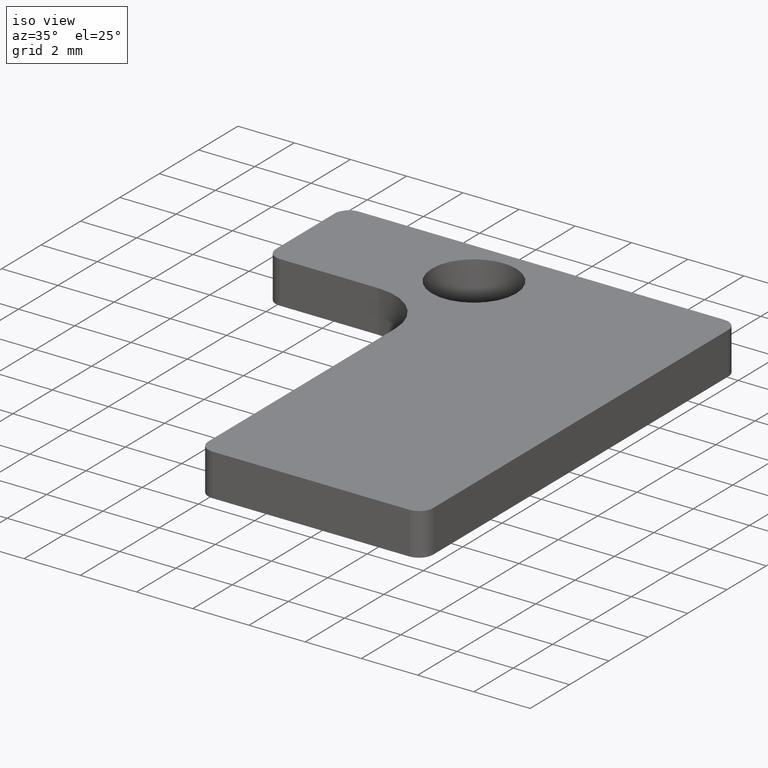
[diagram: clean part render]
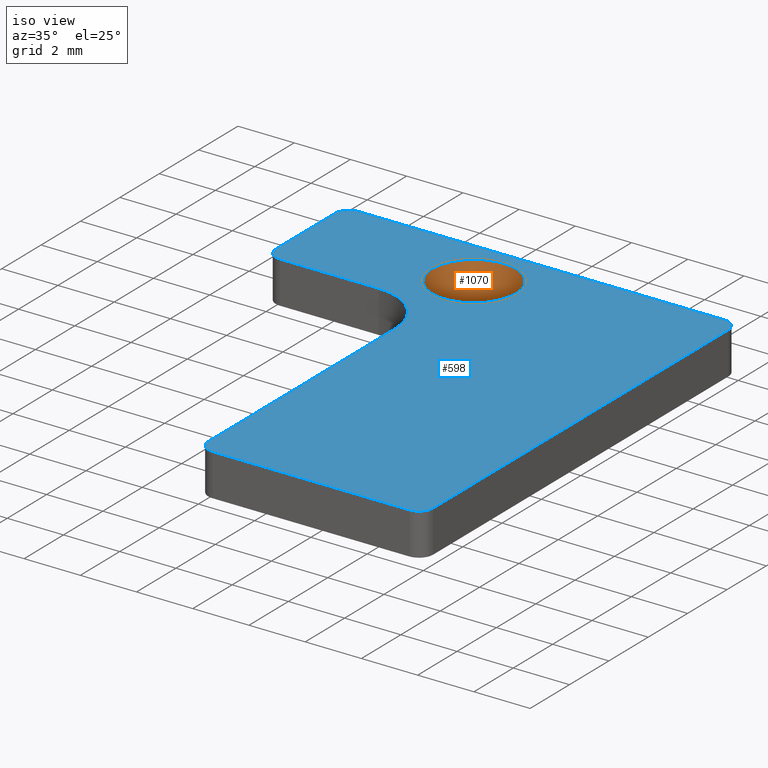
[diagram: same view with the hole feature highlighted: cylindrical wall and planar end face, labeled with their STEP entity ids]
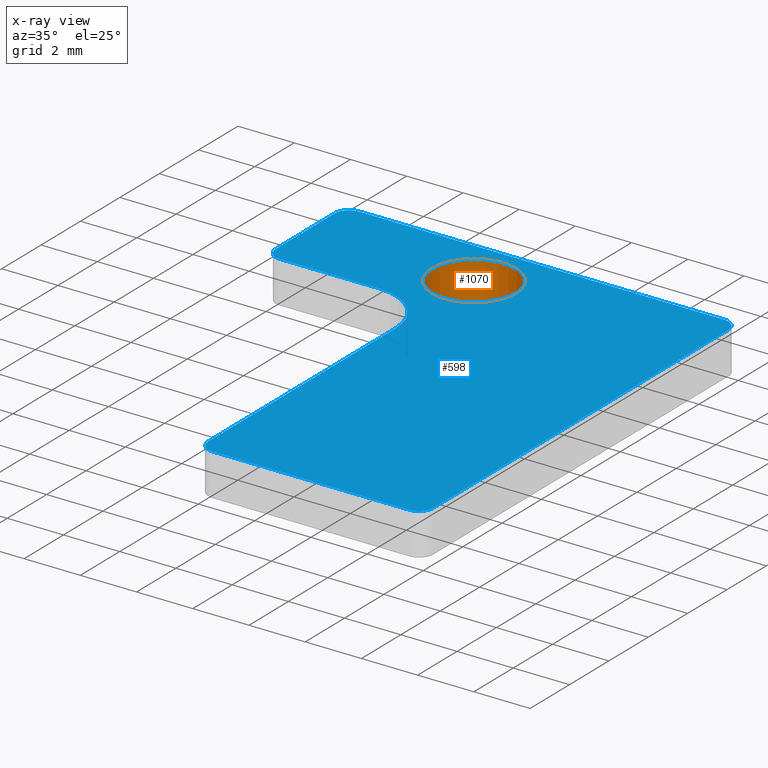
[diagram: x-ray of the same camera — body ghosted, the hole faces saturated]
A machine part, iso view. The highlighted faces form one hole feature of diameter 3 mm: the cylindrical wall (entity #1070, orange) and its adjacent planar end face (entity #598, blue) — they share a circular edge in the B-rep.
The next image is the same camera in x-ray (body ghosted, the hole faces saturated) — the bore reads through the body.
Wall:
#44 = PLANE('',#45);
#45 = AXIS2_PLACEMENT_3D('',#46,#47,#48);
#46 = CARTESIAN_POINT('',(2.2,9.2,0.));
#47 = DIRECTION('',(0.,0.,1.));
#48 = DIRECTION('',(1.,0.,0.));
#100 = PLANE('',#101);
#101 = AXIS2_PLACEMENT_3D('',#102,#103,#104);
#102 = CARTESIAN_POINT('',(2.2,9.2,1.5));
#103 = DIRECTION('',(0.,0.,1.));
#104 = DIRECTION('',(1.,0.,0.));
#462 = EDGE_CURVE('',#463,#463,#465,.T.);
#463 = VERTEX_POINT('',#464);
#464 = CARTESIAN_POINT('',(1.5,14.,0.));
#465 = SURFACE_CURVE('',#466,(#471,#478),.PCURVE_S1.);
#466 = CIRCLE('',#467,1.5);
#467 = AXIS2_PLACEMENT_3D('',#468,#469,#470);
#468 = CARTESIAN_POINT('',(0.,14.,0.));
#469 = DIRECTION('',(0.,0.,1.));
#470 = DIRECTION('',(1.,0.,0.));
#471 = PCURVE('',#44,#472);
#472 = DEFINITIONAL_REPRESENTATION('',(#473),#477);
#473 = CIRCLE('',#474,1.5);
#474 = AXIS2_PLACEMENT_2D('',#475,#476);
#475 = CARTESIAN_POINT('',(-2.2,4.8));
#476 = DIRECTION('',(1.,0.));
#477 = ( GEOMETRIC_REPRESENTATION_CONTEXT(2) 
PARAMETRIC_REPRESENTATION_CONTEXT() REPRESENTATION_CONTEXT('2D SPACE',''
  ) );
#478 = PCURVE('',#479,#484);
#479 = CYLINDRICAL_SURFACE('',#480,1.5);
#480 = AXIS2_PLACEMENT_3D('',#481,#482,#483);
#481 = CARTESIAN_POINT('',(0.,14.,0.));
#482 = DIRECTION('',(-0.,-0.,-1.));
#483 = DIRECTION('',(1.,0.,0.));
#484 = DEFINITIONAL_REPRESENTATION('',(#485),#489);
#485 = LINE('',#486,#487);
#486 = CARTESIAN_POINT('',(-0.,0.));
#487 = VECTOR('',#488,1.);
#488 = DIRECTION('',(-1.,0.));
#489 = ( GEOMETRIC_REPRESENTATION_CONTEXT(2) 
PARAMETRIC_REPRESENTATION_CONTEXT() REPRESENTATION_CONTEXT('2D SPACE',''
  ) );
#824 = EDGE_CURVE('',#825,#825,#827,.T.);
#825 = VERTEX_POINT('',#826);
#826 = CARTESIAN_POINT('',(1.5,14.,1.5));
#827 = SURFACE_CURVE('',#828,(#833,#840),.PCURVE_S1.);
#828 = CIRCLE('',#829,1.5);
#829 = AXIS2_PLACEMENT_3D('',#830,#831,#832);
#830 = CARTESIAN_POINT('',(0.,14.,1.5));
#831 = DIRECTION('',(0.,0.,1.));
#832 = DIRECTION('',(1.,0.,0.));
#833 = PCURVE('',#100,#834);
#834 = DEFINITIONAL_REPRESENTATION('',(#835),#839);
#835 = CIRCLE('',#836,1.5);
#836 = AXIS2_PLACEMENT_2D('',#837,#838);
#837 = CARTESIAN_POINT('',(-2.2,4.8));
#838 = DIRECTION('',(1.,0.));
#839 = ( GEOMETRIC_REPRESENTATION_CONTEXT(2) 
PARAMETRIC_REPRESENTATION_CONTEXT() REPRESENTATION_CONTEXT('2D SPACE',''
  ) );
#840 = PCURVE('',#479,#841);
#841 = DEFINITIONAL_REPRESENTATION('',(#842),#846);
#842 = LINE('',#843,#844);
#843 = CARTESIAN_POINT('',(-0.,-1.5));
#844 = VECTOR('',#845,1.);
#845 = DIRECTION('',(-1.,0.));
#846 = ( GEOMETRIC_REPRESENTATION_CONTEXT(2) 
PARAMETRIC_REPRESENTATION_CONTEXT() REPRESENTATION_CONTEXT('2D SPACE',''
  ) );
#1070 = ADVANCED_FACE('',(#1071),#479,.F.);
#1071 = FACE_BOUND('',#1072,.T.);
#1072 = EDGE_LOOP('',(#1073,#1094,#1095,#1096));
#1073 = ORIENTED_EDGE('',*,*,#1074,.T.);
#1074 = EDGE_CURVE('',#463,#825,#1075,.T.);
#1075 = SEAM_CURVE('',#1076,(#1080,#1087),.PCURVE_S1.);
#1076 = LINE('',#1077,#1078);
#1077 = CARTESIAN_POINT('',(1.5,14.,0.));
#1078 = VECTOR('',#1079,1.);
#1079 = DIRECTION('',(0.,0.,1.));
#1080 = PCURVE('',#479,#1081);
#1081 = DEFINITIONAL_REPRESENTATION('',(#1082),#1086);
#1082 = LINE('',#1083,#1084);
#1083 = CARTESIAN_POINT('',(-0.,0.));
#1084 = VECTOR('',#1085,1.);
#1085 = DIRECTION('',(-0.,-1.));
#1086 = ( GEOMETRIC_REPRESENTATION_CONTEXT(2) 
PARAMETRIC_REPRESENTATION_CONTEXT() REPRESENTATION_CONTEXT('2D SPACE',''
  ) );
#1087 = PCURVE('',#479,#1088);
#1088 = DEFINITIONAL_REPRESENTATION('',(#1089),#1093);
#1089 = LINE('',#1090,#1091);
#1090 = CARTESIAN_POINT('',(-6.28318530718,0.));
#1091 = VECTOR('',#1092,1.);
#1092 = DIRECTION('',(-0.,-1.));
#1093 = ( GEOMETRIC_REPRESENTATION_CONTEXT(2) 
PARAMETRIC_REPRESENTATION_CONTEXT() REPRESENTATION_CONTEXT('2D SPACE',''
  ) );
#1094 = ORIENTED_EDGE('',*,*,#824,.T.);
#1095 = ORIENTED_EDGE('',*,*,#1074,.F.);
#1096 = ORIENTED_EDGE('',*,*,#462,.F.);
End face:
#32 = PLANE('',#33);
#33 = AXIS2_PLACEMENT_3D('',#34,#35,#36);
#34 = CARTESIAN_POINT('',(0.,12.,0.));
#35 = DIRECTION('',(0.,-1.,0.));
#36 = DIRECTION('',(-1.,0.,0.));
#57 = VERTEX_POINT('',#58);
#58 = CARTESIAN_POINT('',(-2.,12.,1.5));
#72 = CYLINDRICAL_SURFACE('',#73,2.);
#73 = AXIS2_PLACEMENT_3D('',#74,#75,#76);
#74 = CARTESIAN_POINT('',(-2.,10.,0.));
#75 = DIRECTION('',(0.,0.,1.));
#76 = DIRECTION('',(0.,1.,0.));
#84 = EDGE_CURVE('',#57,#85,#87,.T.);
#85 = VERTEX_POINT('',#86);
#86 = CARTESIAN_POINT('',(-5.5,12.,1.5));
#87 = SURFACE_CURVE('',#88,(#92,#99),.PCURVE_S1.);
#88 = LINE('',#89,#90);
#89 = CARTESIAN_POINT('',(0.,12.,1.5));
#90 = VECTOR('',#91,1.);
#91 = DIRECTION('',(-1.,0.,0.));
#92 = PCURVE('',#32,#93);
#93 = DEFINITIONAL_REPRESENTATION('',(#94),#98);
#94 = LINE('',#95,#96);
#95 = CARTESIAN_POINT('',(0.,-1.5));
#96 = VECTOR('',#97,1.);
#97 = DIRECTION('',(1.,0.));
#98 = ( GEOMETRIC_REPRESENTATION_CONTEXT(2) 
PARAMETRIC_REPRESENTATION_CONTEXT() REPRESENTATION_CONTEXT('2D SPACE',''
  ) );
#99 = PCURVE('',#100,#105);
#100 = PLANE('',#101);
#101 = AXIS2_PLACEMENT_3D('',#102,#103,#104);
#102 = CARTESIAN_POINT('',(2.2,9.2,1.5));
#103 = DIRECTION('',(0.,0.,1.));
#104 = DIRECTION('',(1.,0.,0.));
#105 = DEFINITIONAL_REPRESENTATION('',(#106),#110);
#106 = LINE('',#107,#108);
#107 = CARTESIAN_POINT('',(-2.2,2.8));
#108 = VECTOR('',#109,1.);
#109 = DIRECTION('',(-1.,0.));
#110 = ( GEOMETRIC_REPRESENTATION_CONTEXT(2) 
PARAMETRIC_REPRESENTATION_CONTEXT() REPRESENTATION_CONTEXT('2D SPACE',''
  ) );
#126 = CYLINDRICAL_SURFACE('',#127,0.5);
#127 = AXIS2_PLACEMENT_3D('',#128,#129,#130);
#128 = CARTESIAN_POINT('',(-5.5,12.5,0.));
#129 = DIRECTION('',(0.,0.,1.));
#130 = DIRECTION('',(0.,-1.,0.));
#186 = PLANE('',#187);
#187 = AXIS2_PLACEMENT_3D('',#188,#189,#190);
#188 = CARTESIAN_POINT('',(0.,0.,0.));
#189 = DIRECTION('',(-1.,0.,0.));
#190 = DIRECTION('',(0.,1.,0.));
#215 = CYLINDRICAL_SURFACE('',#216,0.5);
#216 = AXIS2_PLACEMENT_3D('',#217,#218,#219);
#217 = CARTESIAN_POINT('',(0.5,0.5,0.));
#218 = DIRECTION('',(0.,0.,1.));
#219 = DIRECTION('',(-1.,0.,0.));
#243 = PLANE('',#244);
#244 = AXIS2_PLACEMENT_3D('',#245,#246,#247);
#245 = CARTESIAN_POINT('',(0.,0.,0.));
#246 = DIRECTION('',(0.,1.,0.));
#247 = DIRECTION('',(1.,0.,0.));
#272 = CYLINDRICAL_SURFACE('',#273,0.5);
#273 = AXIS2_PLACEMENT_3D('',#274,#275,#276);
#274 = CARTESIAN_POINT('',(7.5,0.5,0.));
#275 = DIRECTION('',(0.,0.,1.));
#276 = DIRECTION('',(0.,-1.,0.));
#300 = PLANE('',#301);
#301 = AXIS2_PLACEMENT_3D('',#302,#303,#304);
#302 = CARTESIAN_POINT('',(8.,0.,0.));
#303 = DIRECTION('',(-1.,0.,0.));
#304 = DIRECTION('',(0.,1.,0.));
#333 = CYLINDRICAL_SURFACE('',#334,0.5);
#334 = AXIS2_PLACEMENT_3D('',#335,#336,#337);
#335 = CARTESIAN_POINT('',(7.5,15.5,0.));
#336 = DIRECTION('',(0.,0.,1.));
#337 = DIRECTION('',(-0.,1.,0.));
#361 = PLANE('',#362);
#362 = AXIS2_PLACEMENT_3D('',#363,#364,#365);
#363 = CARTESIAN_POINT('',(8.,16.,0.));
#364 = DIRECTION('',(0.,-1.,0.));
#365 = DIRECTION('',(-1.,0.,0.));
#394 = CYLINDRICAL_SURFACE('',#395,0.5);
#395 = AXIS2_PLACEMENT_3D('',#396,#397,#398);
#396 = CARTESIAN_POINT('',(-5.5,15.5,0.));
#397 = DIRECTION('',(0.,0.,1.));
#398 = DIRECTION('',(-1.,0.,0.));
#422 = PLANE('',#423);
#423 = AXIS2_PLACEMENT_3D('',#424,#425,#426);
#424 = CARTESIAN_POINT('',(-6.,16.,0.));
#425 = DIRECTION('',(1.,0.,0.));
#426 = DIRECTION('',(0.,-1.,0.));
#479 = CYLINDRICAL_SURFACE('',#480,1.5);
#480 = AXIS2_PLACEMENT_3D('',#481,#482,#483);
#481 = CARTESIAN_POINT('',(0.,14.,0.));
#482 = DIRECTION('',(-0.,-0.,-1.));
#483 = DIRECTION('',(1.,0.,0.));
#496 = VERTEX_POINT('',#497);
#497 = CARTESIAN_POINT('',(-6.,12.5,1.5));
#518 = EDGE_CURVE('',#85,#496,#519,.T.);
#519 = SURFACE_CURVE('',#520,(#525,#532),.PCURVE_S1.);
#520 = CIRCLE('',#521,0.5);
#521 = AXIS2_PLACEMENT_3D('',#522,#523,#524);
#522 = CARTESIAN_POINT('',(-5.5,12.5,1.5));
#523 = DIRECTION('',(-0.,-0.,-1.));
#524 = DIRECTION('',(0.,-1.,0.));
#525 = PCURVE('',#126,#526);
#526 = DEFINITIONAL_REPRESENTATION('',(#527),#531);
#527 = LINE('',#528,#529);
#528 = CARTESIAN_POINT('',(-0.,1.5));
#529 = VECTOR('',#530,1.);
#530 = DIRECTION('',(-1.,0.));
#531 = ( GEOMETRIC_REPRESENTATION_CONTEXT(2) 
PARAMETRIC_REPRESENTATION_CONTEXT() REPRESENTATION_CONTEXT('2D SPACE',''
  ) );
#532 = PCURVE('',#100,#533);
#533 = DEFINITIONAL_REPRESENTATION('',(#534),#542);
#534 = ( BOUNDED_CURVE() B_SPLINE_CURVE(2,(#535,#536,#537,#538,#539,#540
,#541),.UNSPECIFIED.,.T.,.F.) B_SPLINE_CURVE_WITH_KNOTS((1,2,2,2,2,1),(
    -2.094395102393,0.,2.094395102393,4.188790204786,6.28318530718,
8.377580409573),.UNSPECIFIED.) CURVE() GEOMETRIC_REPRESENTATION_ITEM() 
RATIONAL_B_SPLINE_CURVE((1.,0.5,1.,0.5,1.,0.5,1.)) REPRESENTATION_ITEM(
  '') );
#535 = CARTESIAN_POINT('',(-7.7,2.8));
#536 = CARTESIAN_POINT('',(-8.566025403784,2.8));
#537 = CARTESIAN_POINT('',(-8.133012701892,3.55));
#538 = CARTESIAN_POINT('',(-7.7,4.3));
#539 = CARTESIAN_POINT('',(-7.266987298108,3.55));
#540 = CARTESIAN_POINT('',(-6.833974596216,2.8));
#541 = CARTESIAN_POINT('',(-7.7,2.8));
#542 = ( GEOMETRIC_REPRESENTATION_CONTEXT(2) 
PARAMETRIC_REPRESENTATION_CONTEXT() REPRESENTATION_CONTEXT('2D SPACE',''
  ) );
#550 = VERTEX_POINT('',#551);
#551 = CARTESIAN_POINT('',(4.440892098501E-16,10.,1.5));
#572 = EDGE_CURVE('',#57,#550,#573,.T.);
#573 = SURFACE_CURVE('',#574,(#579,#586),.PCURVE_S1.);
#574 = CIRCLE('',#575,2.);
#575 = AXIS2_PLACEMENT_3D('',#576,#577,#578);
#576 = CARTESIAN_POINT('',(-2.,10.,1.5));
#577 = DIRECTION('',(-0.,-0.,-1.));
#578 = DIRECTION('',(0.,-1.,0.));
#579 = PCURVE('',#72,#580);
#580 = DEFINITIONAL_REPRESENTATION('',(#581),#585);
#581 = LINE('',#582,#583);
#582 = CARTESIAN_POINT('',(3.14159265359,1.5));
#583 = VECTOR('',#584,1.);
#584 = DIRECTION('',(-1.,0.));
#585 = ( GEOMETRIC_REPRESENTATION_CONTEXT(2) 
PARAMETRIC_REPRESENTATION_CONTEXT() REPRESENTATION_CONTEXT('2D SPACE',''
  ) );
#586 = PCURVE('',#100,#587);
#587 = DEFINITIONAL_REPRESENTATION('',(#588),#596);
#588 = ( BOUNDED_CURVE() B_SPLINE_CURVE(2,(#589,#590,#591,#592,#593,#594
,#595),.UNSPECIFIED.,.F.,.F.) B_SPLINE_CURVE_WITH_KNOTS((1,2,2,2,2,1),(
    -2.094395102393,0.,2.094395102393,4.188790204786,6.28318530718,
8.377580409573),.UNSPECIFIED.) CURVE() GEOMETRIC_REPRESENTATION_ITEM() 
RATIONAL_B_SPLINE_CURVE((1.,0.5,1.,0.5,1.,0.5,1.)) REPRESENTATION_ITEM(
  '') );
#589 = CARTESIAN_POINT('',(-4.2,-1.2));
#590 = CARTESIAN_POINT('',(-7.664101615138,-1.2));
#591 = CARTESIAN_POINT('',(-5.932050807569,1.8));
#592 = CARTESIAN_POINT('',(-4.2,4.8));
#593 = CARTESIAN_POINT('',(-2.467949192431,1.8));
#594 = CARTESIAN_POINT('',(-0.735898384862,-1.2));
#595 = CARTESIAN_POINT('',(-4.2,-1.2));
#596 = ( GEOMETRIC_REPRESENTATION_CONTEXT(2) 
PARAMETRIC_REPRESENTATION_CONTEXT() REPRESENTATION_CONTEXT('2D SPACE',''
  ) );
#598 = ADVANCED_FACE('',(#599,#821),#100,.T.);
#599 = FACE_BOUND('',#600,.T.);
#600 = EDGE_LOOP('',(#601,#602,#603,#626,#650,#673,#697,#720,#748,#771,
    #799,#820));
#601 = ORIENTED_EDGE('',*,*,#84,.F.);
#602 = ORIENTED_EDGE('',*,*,#572,.T.);
#603 = ORIENTED_EDGE('',*,*,#604,.F.);
#604 = EDGE_CURVE('',#605,#550,#607,.T.);
#605 = VERTEX_POINT('',#606);
#606 = CARTESIAN_POINT('',(-1.110223024625E-16,0.5,1.5));
#607 = SURFACE_CURVE('',#608,(#612,#619),.PCURVE_S1.);
#608 = LINE('',#609,#610);
#609 = CARTESIAN_POINT('',(0.,0.,1.5));
#610 = VECTOR('',#611,1.);
#611 = DIRECTION('',(0.,1.,0.));
#612 = PCURVE('',#100,#613);
#613 = DEFINITIONAL_REPRESENTATION('',(#614),#618);
#614 = LINE('',#615,#616);
#615 = CARTESIAN_POINT('',(-2.2,-9.2));
#616 = VECTOR('',#617,1.);
#617 = DIRECTION('',(0.,1.));
#618 = ( GEOMETRIC_REPRESENTATION_CONTEXT(2) 
PARAMETRIC_REPRESENTATION_CONTEXT() REPRESENTATION_CONTEXT('2D SPACE',''
  ) );
#619 = PCURVE('',#186,#620);
#620 = DEFINITIONAL_REPRESENTATION('',(#621),#625);
#621 = LINE('',#622,#623);
#622 = CARTESIAN_POINT('',(0.,-1.5));
#623 = VECTOR('',#624,1.);
#624 = DIRECTION('',(1.,0.));
#625 = ( GEOMETRIC_REPRESENTATION_CONTEXT(2) 
PARAMETRIC_REPRESENTATION_CONTEXT() REPRESENTATION_CONTEXT('2D SPACE',''
  ) );
#626 = ORIENTED_EDGE('',*,*,#627,.T.);
#627 = EDGE_CURVE('',#605,#628,#630,.T.);
#628 = VERTEX_POINT('',#629);
#629 = CARTESIAN_POINT('',(0.5,-1.110223024625E-16,1.5));
#630 = SURFACE_CURVE('',#631,(#636,#643),.PCURVE_S1.);
#631 = CIRCLE('',#632,0.5);
#632 = AXIS2_PLACEMENT_3D('',#633,#634,#635);
#633 = CARTESIAN_POINT('',(0.5,0.5,1.5));
#634 = DIRECTION('',(0.,0.,1.));
#635 = DIRECTION('',(0.,-1.,0.));
#636 = PCURVE('',#100,#637);
#637 = DEFINITIONAL_REPRESENTATION('',(#638),#642);
#638 = CIRCLE('',#639,0.5);
#639 = AXIS2_PLACEMENT_2D('',#640,#641);
#640 = CARTESIAN_POINT('',(-1.7,-8.7));
#641 = DIRECTION('',(0.,-1.));
#642 = ( GEOMETRIC_REPRESENTATION_CONTEXT(2) 
PARAMETRIC_REPRESENTATION_CONTEXT() REPRESENTATION_CONTEXT('2D SPACE',''
  ) );
#643 = PCURVE('',#215,#644);
#644 = DEFINITIONAL_REPRESENTATION('',(#645),#649);
#645 = LINE('',#646,#647);
#646 = CARTESIAN_POINT('',(-4.712388980385,1.5));
#647 = VECTOR('',#648,1.);
#648 = DIRECTION('',(1.,0.));
#649 = ( GEOMETRIC_REPRESENTATION_CONTEXT(2) 
PARAMETRIC_REPRESENTATION_CONTEXT() REPRESENTATION_CONTEXT('2D SPACE',''
  ) );
#650 = ORIENTED_EDGE('',*,*,#651,.T.);
#651 = EDGE_CURVE('',#628,#652,#654,.T.);
#652 = VERTEX_POINT('',#653);
#653 = CARTESIAN_POINT('',(7.5,-1.110223024625E-16,1.5));
#654 = SURFACE_CURVE('',#655,(#659,#666),.PCURVE_S1.);
#655 = LINE('',#656,#657);
#656 = CARTESIAN_POINT('',(0.,0.,1.5));
#657 = VECTOR('',#658,1.);
#658 = DIRECTION('',(1.,0.,0.));
#659 = PCURVE('',#100,#660);
#660 = DEFINITIONAL_REPRESENTATION('',(#661),#665);
#661 = LINE('',#662,#663);
#662 = CARTESIAN_POINT('',(-2.2,-9.2));
#663 = VECTOR('',#664,1.);
#664 = DIRECTION('',(1.,0.));
#665 = ( GEOMETRIC_REPRESENTATION_CONTEXT(2) 
PARAMETRIC_REPRESENTATION_CONTEXT() REPRESENTATION_CONTEXT('2D SPACE',''
  ) );
#666 = PCURVE('',#243,#667);
#667 = DEFINITIONAL_REPRESENTATION('',(#668),#672);
#668 = LINE('',#669,#670);
#669 = CARTESIAN_POINT('',(0.,-1.5));
#670 = VECTOR('',#671,1.);
#671 = DIRECTION('',(1.,0.));
#672 = ( GEOMETRIC_REPRESENTATION_CONTEXT(2) 
PARAMETRIC_REPRESENTATION_CONTEXT() REPRESENTATION_CONTEXT('2D SPACE',''
  ) );
#673 = ORIENTED_EDGE('',*,*,#674,.T.);
#674 = EDGE_CURVE('',#652,#675,#677,.T.);
#675 = VERTEX_POINT('',#676);
#676 = CARTESIAN_POINT('',(8.,0.5,1.5));
#677 = SURFACE_CURVE('',#678,(#683,#690),.PCURVE_S1.);
#678 = CIRCLE('',#679,0.5);
#679 = AXIS2_PLACEMENT_3D('',#680,#681,#682);
#680 = CARTESIAN_POINT('',(7.5,0.5,1.5));
#681 = DIRECTION('',(0.,0.,1.));
#682 = DIRECTION('',(0.,-1.,0.));
#683 = PCURVE('',#100,#684);
#684 = DEFINITIONAL_REPRESENTATION('',(#685),#689);
#685 = CIRCLE('',#686,0.5);
#686 = AXIS2_PLACEMENT_2D('',#687,#688);
#687 = CARTESIAN_POINT('',(5.3,-8.7));
#688 = DIRECTION('',(0.,-1.));
#689 = ( GEOMETRIC_REPRESENTATION_CONTEXT(2) 
PARAMETRIC_REPRESENTATION_CONTEXT() REPRESENTATION_CONTEXT('2D SPACE',''
  ) );
#690 = PCURVE('',#272,#691);
#691 = DEFINITIONAL_REPRESENTATION('',(#692),#696);
#692 = LINE('',#693,#694);
#693 = CARTESIAN_POINT('',(0.,1.5));
#694 = VECTOR('',#695,1.);
#695 = DIRECTION('',(1.,0.));
#696 = ( GEOMETRIC_REPRESENTATION_CONTEXT(2) 
PARAMETRIC_REPRESENTATION_CONTEXT() REPRESENTATION_CONTEXT('2D SPACE',''
  ) );
#697 = ORIENTED_EDGE('',*,*,#698,.T.);
#698 = EDGE_CURVE('',#675,#699,#701,.T.);
#699 = VERTEX_POINT('',#700);
#700 = CARTESIAN_POINT('',(8.,15.5,1.5));
#701 = SURFACE_CURVE('',#702,(#706,#713),.PCURVE_S1.);
#702 = LINE('',#703,#704);
#703 = CARTESIAN_POINT('',(8.,0.,1.5));
#704 = VECTOR('',#705,1.);
#705 = DIRECTION('',(0.,1.,0.));
#706 = PCURVE('',#100,#707);
#707 = DEFINITIONAL_REPRESENTATION('',(#708),#712);
#708 = LINE('',#709,#710);
#709 = CARTESIAN_POINT('',(5.8,-9.2));
#710 = VECTOR('',#711,1.);
#711 = DIRECTION('',(0.,1.));
#712 = ( GEOMETRIC_REPRESENTATION_CONTEXT(2) 
PARAMETRIC_REPRESENTATION_CONTEXT() REPRESENTATION_CONTEXT('2D SPACE',''
  ) );
#713 = PCURVE('',#300,#714);
#714 = DEFINITIONAL_REPRESENTATION('',(#715),#719);
#715 = LINE('',#716,#717);
#716 = CARTESIAN_POINT('',(0.,-1.5));
#717 = VECTOR('',#718,1.);
#718 = DIRECTION('',(1.,0.));
#719 = ( GEOMETRIC_REPRESENTATION_CONTEXT(2) 
PARAMETRIC_REPRESENTATION_CONTEXT() REPRESENTATION_CONTEXT('2D SPACE',''
  ) );
#720 = ORIENTED_EDGE('',*,*,#721,.F.);
#721 = EDGE_CURVE('',#722,#699,#724,.T.);
#722 = VERTEX_POINT('',#723);
#723 = CARTESIAN_POINT('',(7.5,16.,1.5));
#724 = SURFACE_CURVE('',#725,(#730,#741),.PCURVE_S1.);
#725 = CIRCLE('',#726,0.5);
#726 = AXIS2_PLACEMENT_3D('',#727,#728,#729);
#727 = CARTESIAN_POINT('',(7.5,15.5,1.5));
#728 = DIRECTION('',(-0.,-0.,-1.));
#729 = DIRECTION('',(0.,-1.,0.));
#730 = PCURVE('',#100,#731);
#731 = DEFINITIONAL_REPRESENTATION('',(#732),#740);
#732 = ( BOUNDED_CURVE() B_SPLINE_CURVE(2,(#733,#734,#735,#736,#737,#738
,#739),.UNSPECIFIED.,.T.,.F.) B_SPLINE_CURVE_WITH_KNOTS((1,2,2,2,2,1),(
    -2.094395102393,0.,2.094395102393,4.188790204786,6.28318530718,
8.377580409573),.UNSPECIFIED.) CURVE() GEOMETRIC_REPRESENTATION_ITEM() 
RATIONAL_B_SPLINE_CURVE((1.,0.5,1.,0.5,1.,0.5,1.)) REPRESENTATION_ITEM(
  '') );
#733 = CARTESIAN_POINT('',(5.3,5.8));
#734 = CARTESIAN_POINT('',(4.433974596216,5.8));
#735 = CARTESIAN_POINT('',(4.866987298108,6.55));
#736 = CARTESIAN_POINT('',(5.3,7.3));
#737 = CARTESIAN_POINT('',(5.733012701892,6.55));
#738 = CARTESIAN_POINT('',(6.166025403784,5.8));
#739 = CARTESIAN_POINT('',(5.3,5.8));
#740 = ( GEOMETRIC_REPRESENTATION_CONTEXT(2) 
PARAMETRIC_REPRESENTATION_CONTEXT() REPRESENTATION_CONTEXT('2D SPACE',''
  ) );
#741 = PCURVE('',#333,#742);
#742 = DEFINITIONAL_REPRESENTATION('',(#743),#747);
#743 = LINE('',#744,#745);
#744 = CARTESIAN_POINT('',(3.14159265359,1.5));
#745 = VECTOR('',#746,1.);
#746 = DIRECTION('',(-1.,0.));
#747 = ( GEOMETRIC_REPRESENTATION_CONTEXT(2) 
PARAMETRIC_REPRESENTATION_CONTEXT() REPRESENTATION_CONTEXT('2D SPACE',''
  ) );
#748 = ORIENTED_EDGE('',*,*,#749,.T.);
#749 = EDGE_CURVE('',#722,#750,#752,.T.);
#750 = VERTEX_POINT('',#751);
#751 = CARTESIAN_POINT('',(-5.5,16.,1.5));
#752 = SURFACE_CURVE('',#753,(#757,#764),.PCURVE_S1.);
#753 = LINE('',#754,#755);
#754 = CARTESIAN_POINT('',(8.,16.,1.5));
#755 = VECTOR('',#756,1.);
#756 = DIRECTION('',(-1.,0.,0.));
#757 = PCURVE('',#100,#758);
#758 = DEFINITIONAL_REPRESENTATION('',(#759),#763);
#759 = LINE('',#760,#761);
#760 = CARTESIAN_POINT('',(5.8,6.8));
#761 = VECTOR('',#762,1.);
#762 = DIRECTION('',(-1.,0.));
#763 = ( GEOMETRIC_REPRESENTATION_CONTEXT(2) 
PARAMETRIC_REPRESENTATION_CONTEXT() REPRESENTATION_CONTEXT('2D SPACE',''
  ) );
#764 = PCURVE('',#361,#765);
#765 = DEFINITIONAL_REPRESENTATION('',(#766),#770);
#766 = LINE('',#767,#768);
#767 = CARTESIAN_POINT('',(0.,-1.5));
#768 = VECTOR('',#769,1.);
#769 = DIRECTION('',(1.,0.));
#770 = ( GEOMETRIC_REPRESENTATION_CONTEXT(2) 
PARAMETRIC_REPRESENTATION_CONTEXT() REPRESENTATION_CONTEXT('2D SPACE',''
  ) );
#771 = ORIENTED_EDGE('',*,*,#772,.F.);
#772 = EDGE_CURVE('',#773,#750,#775,.T.);
#773 = VERTEX_POINT('',#774);
#774 = CARTESIAN_POINT('',(-6.,15.5,1.5));
#775 = SURFACE_CURVE('',#776,(#781,#792),.PCURVE_S1.);
#776 = CIRCLE('',#777,0.5);
#777 = AXIS2_PLACEMENT_3D('',#778,#779,#780);
#778 = CARTESIAN_POINT('',(-5.5,15.5,1.5));
#779 = DIRECTION('',(-0.,-0.,-1.));
#780 = DIRECTION('',(0.,-1.,0.));
#781 = PCURVE('',#100,#782);
#782 = DEFINITIONAL_REPRESENTATION('',(#783),#791);
#783 = ( BOUNDED_CURVE() B_SPLINE_CURVE(2,(#784,#785,#786,#787,#788,#789
,#790),.UNSPECIFIED.,.T.,.F.) B_SPLINE_CURVE_WITH_KNOTS((1,2,2,2,2,1),(
    -2.094395102393,0.,2.094395102393,4.188790204786,6.28318530718,
8.377580409573),.UNSPECIFIED.) CURVE() GEOMETRIC_REPRESENTATION_ITEM() 
RATIONAL_B_SPLINE_CURVE((1.,0.5,1.,0.5,1.,0.5,1.)) REPRESENTATION_ITEM(
  '') );
#784 = CARTESIAN_POINT('',(-7.7,5.8));
#785 = CARTESIAN_POINT('',(-8.566025403784,5.8));
#786 = CARTESIAN_POINT('',(-8.133012701892,6.55));
#787 = CARTESIAN_POINT('',(-7.7,7.3));
#788 = CARTESIAN_POINT('',(-7.266987298108,6.55));
#789 = CARTESIAN_POINT('',(-6.833974596216,5.8));
#790 = CARTESIAN_POINT('',(-7.7,5.8));
#791 = ( GEOMETRIC_REPRESENTATION_CONTEXT(2) 
PARAMETRIC_REPRESENTATION_CONTEXT() REPRESENTATION_CONTEXT('2D SPACE',''
  ) );
#792 = PCURVE('',#394,#793);
#793 = DEFINITIONAL_REPRESENTATION('',(#794),#798);
#794 = LINE('',#795,#796);
#795 = CARTESIAN_POINT('',(1.570796326795,1.5));
#796 = VECTOR('',#797,1.);
#797 = DIRECTION('',(-1.,0.));
#798 = ( GEOMETRIC_REPRESENTATION_CONTEXT(2) 
PARAMETRIC_REPRESENTATION_CONTEXT() REPRESENTATION_CONTEXT('2D SPACE',''
  ) );
#799 = ORIENTED_EDGE('',*,*,#800,.T.);
#800 = EDGE_CURVE('',#773,#496,#801,.T.);
#801 = SURFACE_CURVE('',#802,(#806,#813),.PCURVE_S1.);
#802 = LINE('',#803,#804);
#803 = CARTESIAN_POINT('',(-6.,16.,1.5));
#804 = VECTOR('',#805,1.);
#805 = DIRECTION('',(0.,-1.,0.));
#806 = PCURVE('',#100,#807);
#807 = DEFINITIONAL_REPRESENTATION('',(#808),#812);
#808 = LINE('',#809,#810);
#809 = CARTESIAN_POINT('',(-8.2,6.8));
#810 = VECTOR('',#811,1.);
#811 = DIRECTION('',(0.,-1.));
#812 = ( GEOMETRIC_REPRESENTATION_CONTEXT(2) 
PARAMETRIC_REPRESENTATION_CONTEXT() REPRESENTATION_CONTEXT('2D SPACE',''
  ) );
#813 = PCURVE('',#422,#814);
#814 = DEFINITIONAL_REPRESENTATION('',(#815),#819);
#815 = LINE('',#816,#817);
#816 = CARTESIAN_POINT('',(0.,-1.5));
#817 = VECTOR('',#818,1.);
#818 = DIRECTION('',(1.,0.));
#819 = ( GEOMETRIC_REPRESENTATION_CONTEXT(2) 
PARAMETRIC_REPRESENTATION_CONTEXT() REPRESENTATION_CONTEXT('2D SPACE',''
  ) );
#820 = ORIENTED_EDGE('',*,*,#518,.F.);
#821 = FACE_BOUND('',#822,.T.);
#822 = EDGE_LOOP('',(#823));
#823 = ORIENTED_EDGE('',*,*,#824,.F.);
#824 = EDGE_CURVE('',#825,#825,#827,.T.);
#825 = VERTEX_POINT('',#826);
#826 = CARTESIAN_POINT('',(1.5,14.,1.5));
#827 = SURFACE_CURVE('',#828,(#833,#840),.PCURVE_S1.);
#828 = CIRCLE('',#829,1.5);
#829 = AXIS2_PLACEMENT_3D('',#830,#831,#832);
#830 = CARTESIAN_POINT('',(0.,14.,1.5));
#831 = DIRECTION('',(0.,0.,1.));
#832 = DIRECTION('',(1.,0.,0.));
#833 = PCURVE('',#100,#834);
#834 = DEFINITIONAL_REPRESENTATION('',(#835),#839);
#835 = CIRCLE('',#836,1.5);
#836 = AXIS2_PLACEMENT_2D('',#837,#838);
#837 = CARTESIAN_POINT('',(-2.2,4.8));
#838 = DIRECTION('',(1.,0.));
#839 = ( GEOMETRIC_REPRESENTATION_CONTEXT(2) 
PARAMETRIC_REPRESENTATION_CONTEXT() REPRESENTATION_CONTEXT('2D SPACE',''
  ) );
#840 = PCURVE('',#479,#841);
#841 = DEFINITIONAL_REPRESENTATION('',(#842),#846);
#842 = LINE('',#843,#844);
#843 = CARTESIAN_POINT('',(-0.,-1.5));
#844 = VECTOR('',#845,1.);
#845 = DIRECTION('',(-1.,0.));
#846 = ( GEOMETRIC_REPRESENTATION_CONTEXT(2) 
PARAMETRIC_REPRESENTATION_CONTEXT() REPRESENTATION_CONTEXT('2D SPACE',''
  ) );